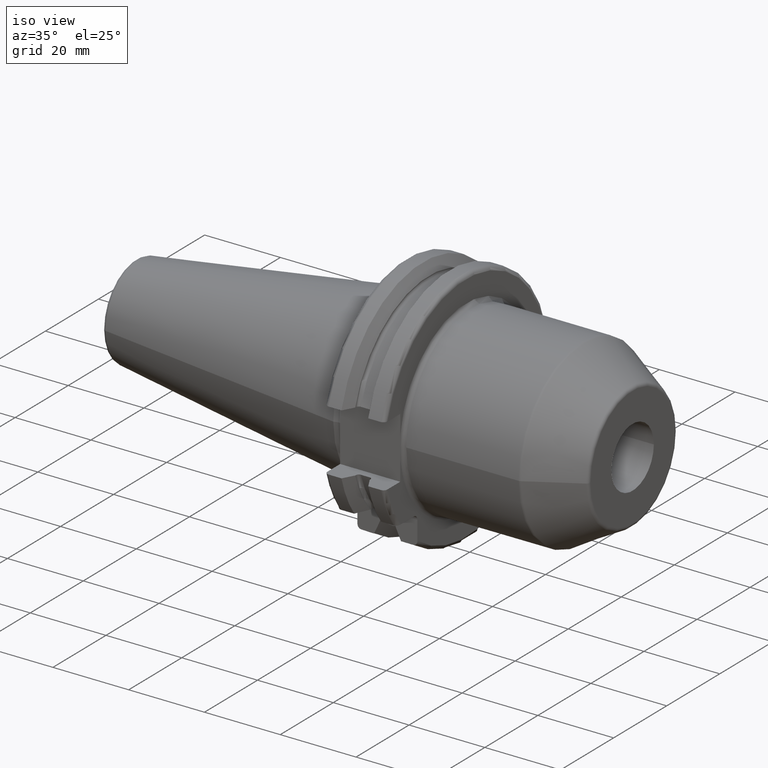
[diagram: clean part render]
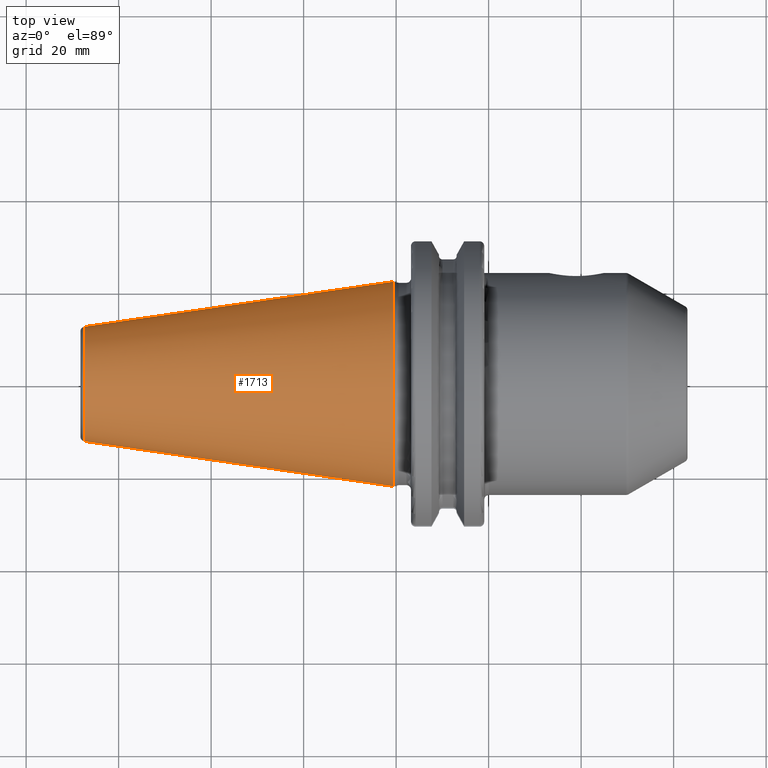
[diagram: tour spotlight — one face highlighted and labeled with its STEP entity id]
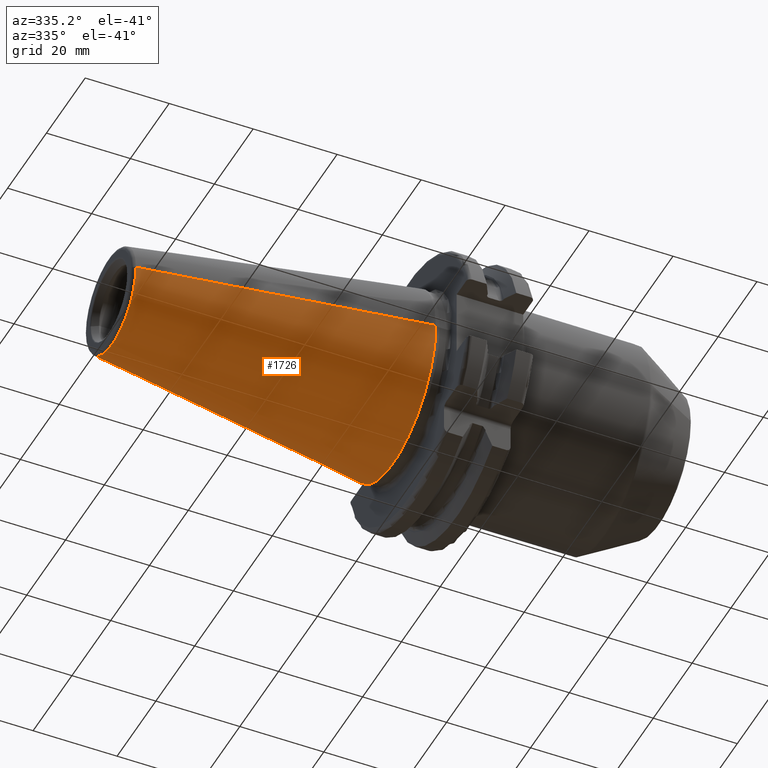
[diagram: tour spotlight — one face highlighted and labeled with its STEP entity id]
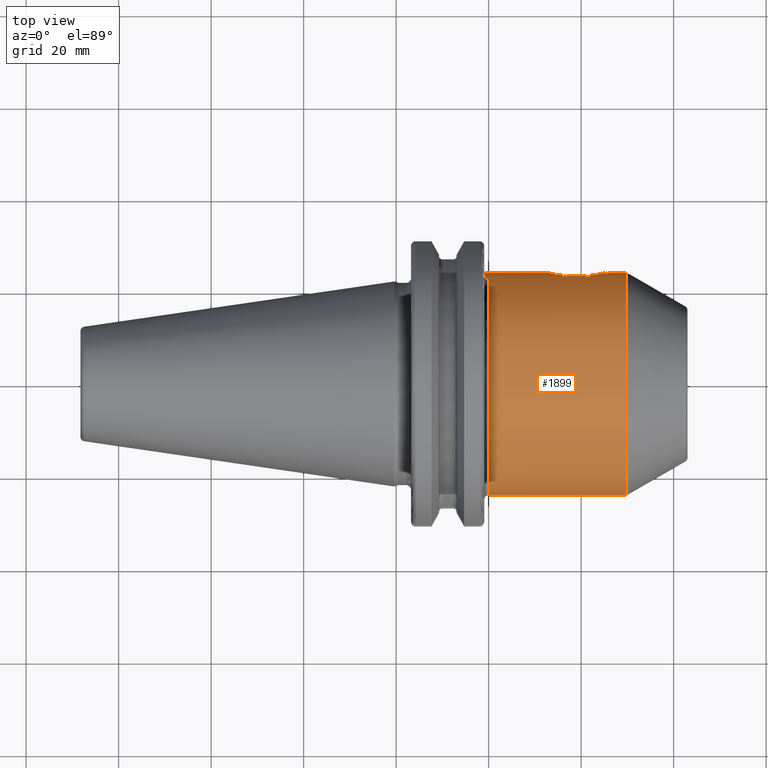
[diagram: tour spotlight — one face highlighted and labeled with its STEP entity id]
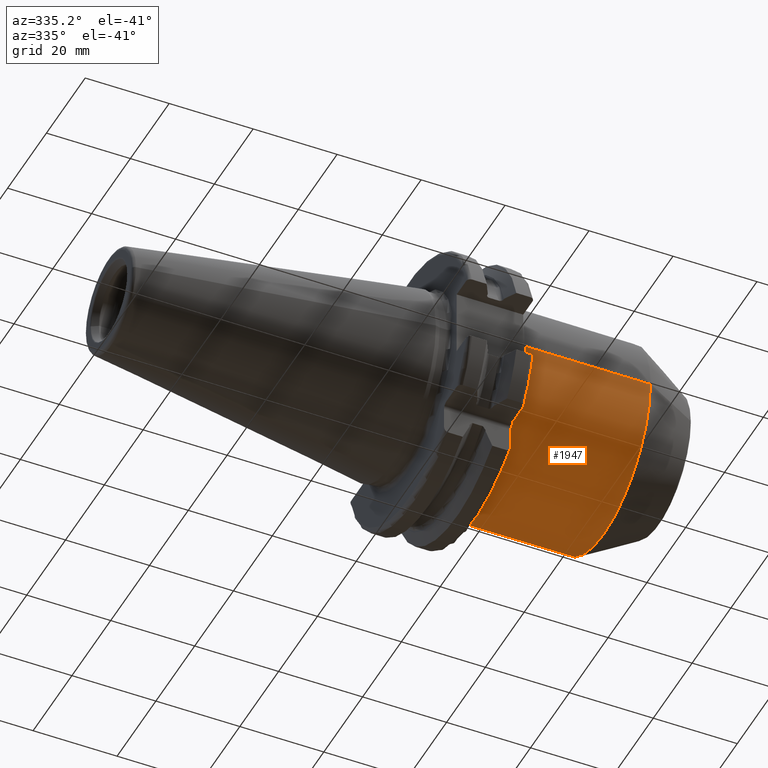
[diagram: tour spotlight — one face highlighted and labeled with its STEP entity id]
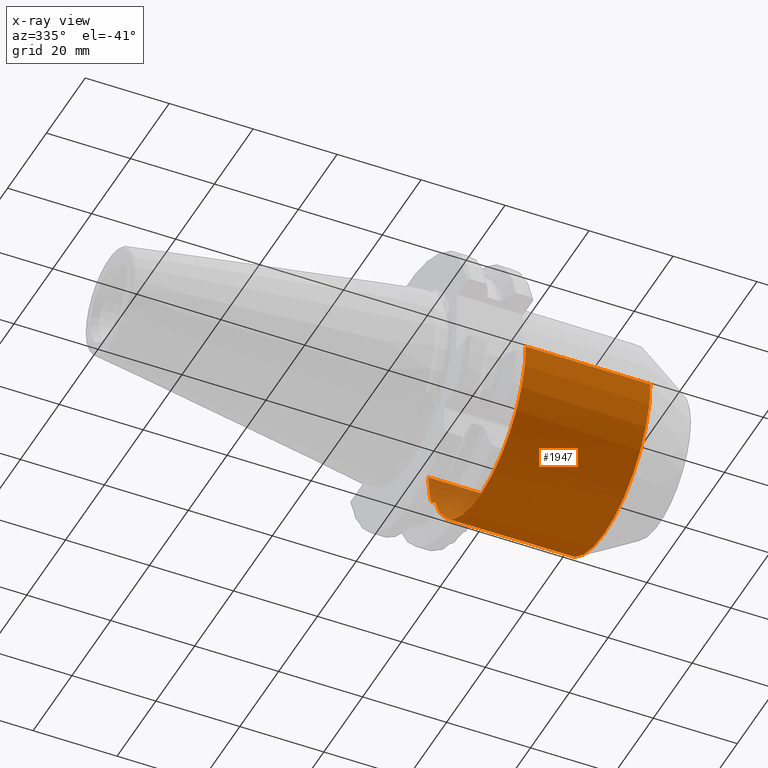
[diagram: x-ray of the same camera — body ghosted, this tour face saturated]
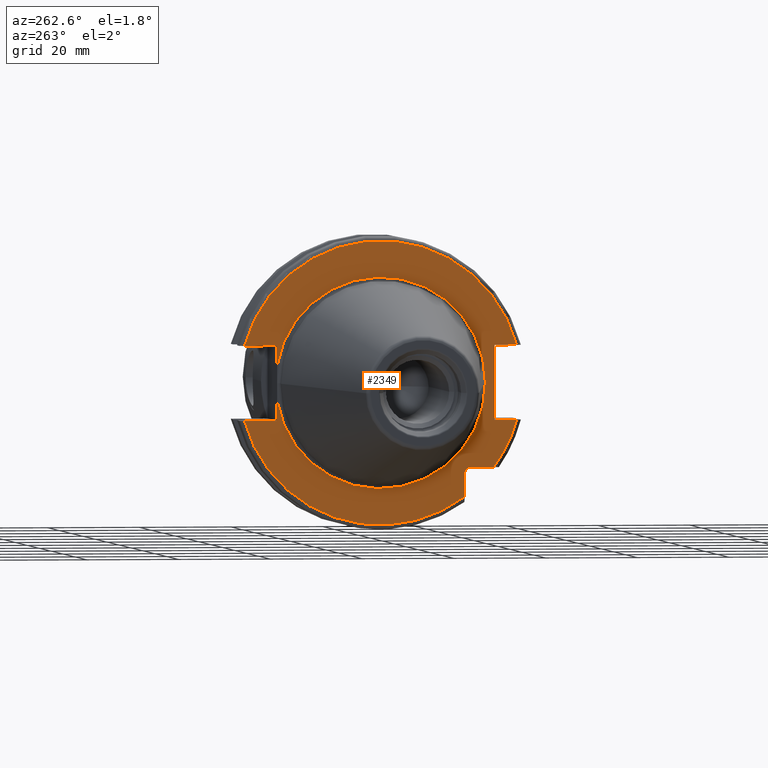
[diagram: tour spotlight — one face highlighted and labeled with its STEP entity id]
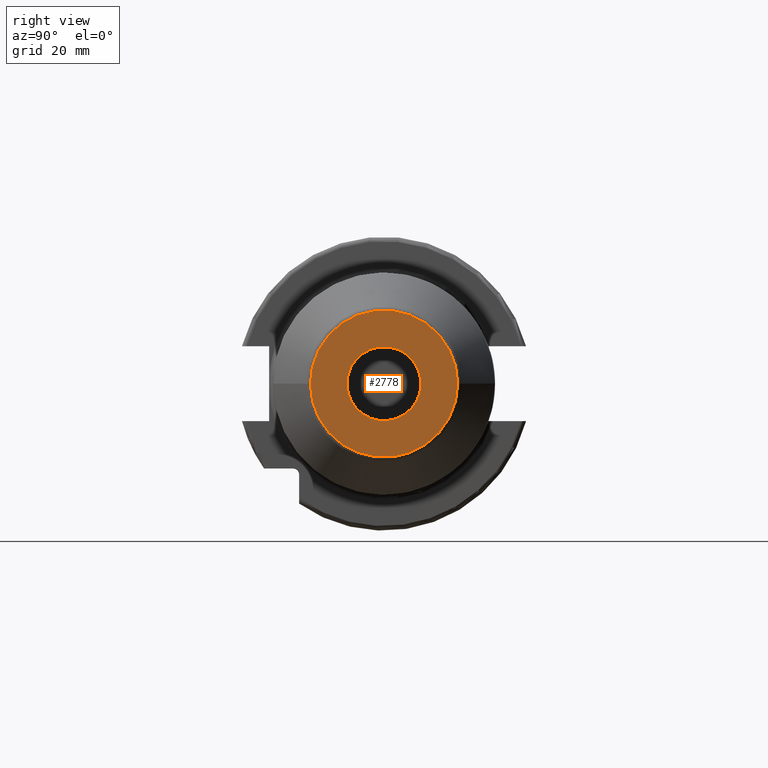
[diagram: tour spotlight — one face highlighted and labeled with its STEP entity id]
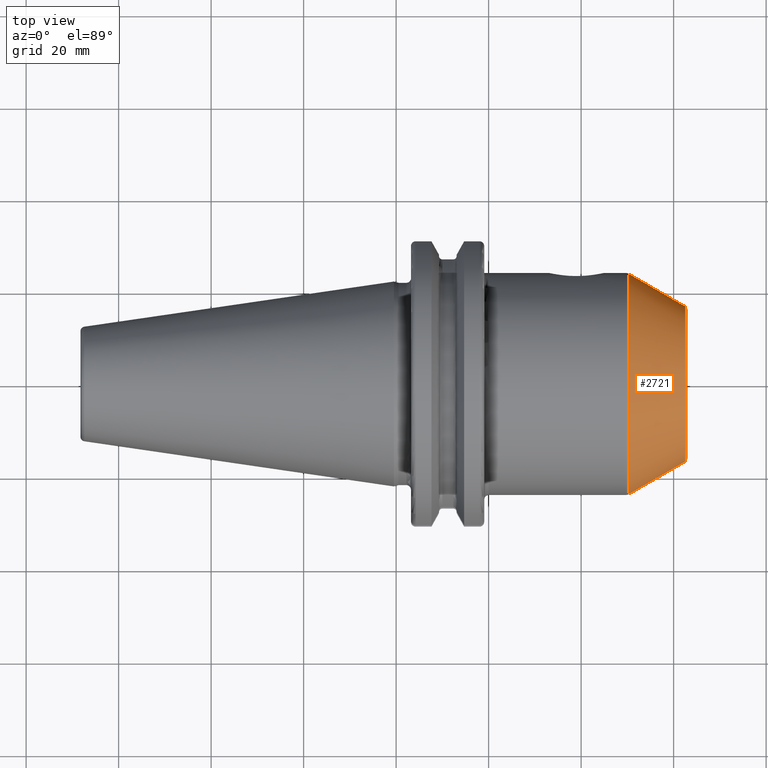
[diagram: tour spotlight — one face highlighted and labeled with its STEP entity id]
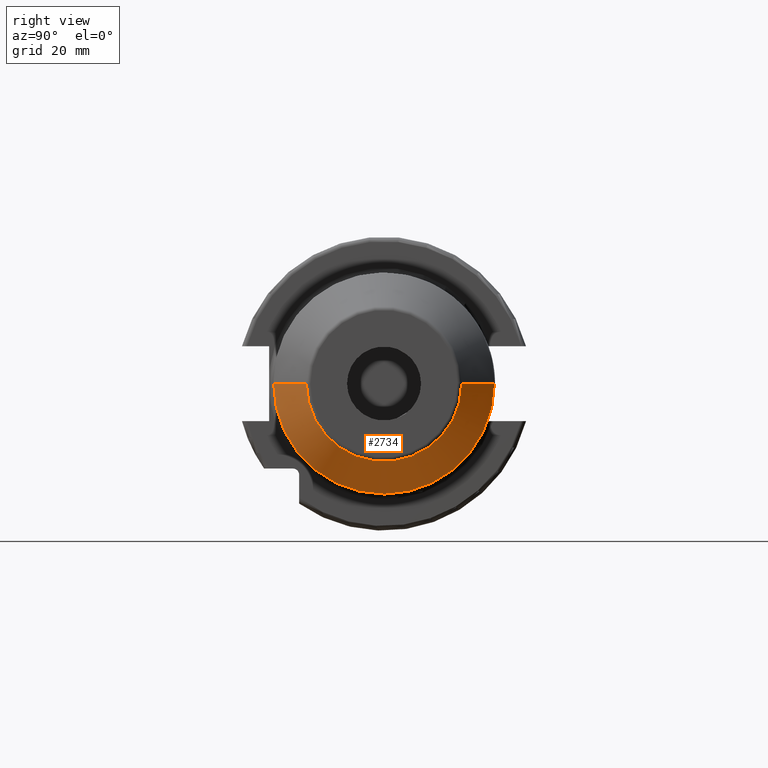
[diagram: tour spotlight — one face highlighted and labeled with its STEP entity id]
A machine part: a face-by-face anatomy tour. The part has 100 B-rep faces; the first image is the clean iso view, then the 8 largest visible faces are spotlighted one at a time (largest first), each with its STEP entity span.

Face 1 — top view, entity #1713. In plain terms, the highlighted conical surface has half-angle 8.298 deg.
Definition (entity closure, byte-faithful):
#37=CARTESIAN_POINT('',(-6.743710273571E1,0.E0,0.E0));
#38=DIRECTION('',(1.E0,0.E0,0.E0));
#39=DIRECTION('',(0.E0,1.E0,0.E0));
#40=AXIS2_PLACEMENT_3D('',#37,#38,#39);
#42=CARTESIAN_POINT('',(-4.896823332305E-1,0.E0,0.E0));
#43=DIRECTION('',(1.E0,0.E0,0.E0));
#44=DIRECTION('',(0.E0,1.E0,0.E0));
#45=AXIS2_PLACEMENT_3D('',#42,#43,#44);
#47=DIRECTION('',(-9.895312636440E-1,-1.443186691705E-1,0.E0));
#48=VECTOR('',#47,6.765568998391E1);
#49=CARTESIAN_POINT('',(-4.896823332305E-1,2.215358204157E1,0.E0));
#50=LINE('',#49,#48);
#51=DIRECTION('',(-9.895312636440E-1,1.443186691705E-1,0.E0));
#52=VECTOR('',#51,6.765568998391E1);
#53=CARTESIAN_POINT('',(-4.896823332305E-1,-2.215358204157E1,0.E0));
#54=LINE('',#53,#52);
#1379=CARTESIAN_POINT('',(-6.743710273571E1,1.238960290128E1,0.E0));
#1381=VERTEX_POINT('',#1379);
#1383=CARTESIAN_POINT('',(-6.743710273571E1,-1.238960290128E1,0.E0));
#1385=VERTEX_POINT('',#1383);
#1447=CARTESIAN_POINT('',(-4.896823332305E-1,2.215358204157E1,0.E0));
#1448=VERTEX_POINT('',#1447);
#1449=CARTESIAN_POINT('',(-4.896823332305E-1,-2.215358204157E1,0.E0));
#1450=VERTEX_POINT('',#1449);
#1699=CARTESIAN_POINT('',(-3.396339253447E1,0.E0,0.E0));
#1700=DIRECTION('',(1.E0,0.E0,0.E0));
#1701=DIRECTION('',(0.E0,-1.E0,0.E0));
#1702=AXIS2_PLACEMENT_3D('',#1699,#1700,#1701);
#1703=CONICAL_SURFACE('',#1702,1.727159247143E1,8.297826828206E0);
#1705=ORIENTED_EDGE('',*,*,#1704,.F.);
#1707=ORIENTED_EDGE('',*,*,#1706,.T.);
#1709=ORIENTED_EDGE('',*,*,#1708,.T.);
#1710=ORIENTED_EDGE('',*,*,#1692,.F.);
#1711=EDGE_LOOP('',(#1705,#1707,#1709,#1710));
#1712=FACE_OUTER_BOUND('',#1711,.F.);
#1713=ADVANCED_FACE('',(#1712),#1703,.T.);
#41=CIRCLE('',#40,1.238960290128E1);
#46=CIRCLE('',#45,2.215358204157E1);
#1692=EDGE_CURVE('',#1381,#1385,#41,.T.);
#1704=EDGE_CURVE('',#1448,#1381,#50,.T.);
#1706=EDGE_CURVE('',#1448,#1450,#46,.T.);
#1708=EDGE_CURVE('',#1450,#1385,#54,.T.);

Face 2 — auxiliary view, entity #1726. In plain terms, the highlighted conical surface has half-angle 8.298 deg.
Definition (entity closure, byte-faithful):
#32=CARTESIAN_POINT('',(-6.743710273571E1,0.E0,0.E0));
#33=DIRECTION('',(-1.E0,0.E0,0.E0));
#34=DIRECTION('',(0.E0,1.E0,0.E0));
#35=AXIS2_PLACEMENT_3D('',#32,#33,#34);
#47=DIRECTION('',(-9.895312636440E-1,-1.443186691705E-1,0.E0));
#48=VECTOR('',#47,6.765568998391E1);
#49=CARTESIAN_POINT('',(-4.896823332305E-1,2.215358204157E1,0.E0));
#50=LINE('',#49,#48);
#51=DIRECTION('',(-9.895312636440E-1,1.443186691705E-1,0.E0));
#52=VECTOR('',#51,6.765568998391E1);
#53=CARTESIAN_POINT('',(-4.896823332305E-1,-2.215358204157E1,0.E0));
#54=LINE('',#53,#52);
#55=CARTESIAN_POINT('',(-4.896823332305E-1,0.E0,0.E0));
#56=DIRECTION('',(-1.E0,0.E0,0.E0));
#57=DIRECTION('',(0.E0,1.E0,0.E0));
#58=AXIS2_PLACEMENT_3D('',#55,#56,#57);
#1379=CARTESIAN_POINT('',(-6.743710273571E1,1.238960290128E1,0.E0));
#1381=VERTEX_POINT('',#1379);
#1383=CARTESIAN_POINT('',(-6.743710273571E1,-1.238960290128E1,0.E0));
#1385=VERTEX_POINT('',#1383);
#1447=CARTESIAN_POINT('',(-4.896823332305E-1,2.215358204157E1,0.E0));
#1448=VERTEX_POINT('',#1447);
#1449=CARTESIAN_POINT('',(-4.896823332305E-1,-2.215358204157E1,0.E0));
#1450=VERTEX_POINT('',#1449);
#1714=CARTESIAN_POINT('',(-3.396339253447E1,0.E0,0.E0));
#1715=DIRECTION('',(1.E0,0.E0,0.E0));
#1716=DIRECTION('',(0.E0,-1.E0,0.E0));
#1717=AXIS2_PLACEMENT_3D('',#1714,#1715,#1716);
#1718=CONICAL_SURFACE('',#1717,1.727159247143E1,8.297826828206E0);
#1719=ORIENTED_EDGE('',*,*,#1704,.T.);
#1720=ORIENTED_EDGE('',*,*,#1681,.T.);
#1721=ORIENTED_EDGE('',*,*,#1708,.F.);
#1723=ORIENTED_EDGE('',*,*,#1722,.F.);
#1724=EDGE_LOOP('',(#1719,#1720,#1721,#1723));
#1725=FACE_OUTER_BOUND('',#1724,.F.);
#1726=ADVANCED_FACE('',(#1725),#1718,.T.);
#36=CIRCLE('',#35,1.238960290128E1);
#59=CIRCLE('',#58,2.215358204157E1);
#1681=EDGE_CURVE('',#1381,#1385,#36,.T.);
#1704=EDGE_CURVE('',#1448,#1381,#50,.T.);
#1708=EDGE_CURVE('',#1450,#1385,#54,.T.);
#1722=EDGE_CURVE('',#1448,#1450,#59,.T.);

Face 3 — top view, entity #1899. In plain terms, the highlighted cylindrical surface (partial cylindrical patch) has radius 24 mm, axis along (1, 0, 0).
Definition (entity closure, byte-faithful):
#135=CARTESIAN_POINT('',(1.905E1,0.E0,0.E0));
#136=DIRECTION('',(1.E0,0.E0,0.E0));
#137=DIRECTION('',(0.E0,1.E0,0.E0));
#138=AXIS2_PLACEMENT_3D('',#135,#136,#137);
#144=CARTESIAN_POINT('',(4.5E1,2.4E1,0.E0));
#145=CARTESIAN_POINT('',(4.5E1,2.4E1,3.668511090384E-1));
#146=CARTESIAN_POINT('',(4.493430291122E1,2.398343549512E1,1.090744288177E0));
#147=CARTESIAN_POINT('',(4.463170178380E1,2.390958246924E1,2.167808742937E0));
#148=CARTESIAN_POINT('',(4.413762659424E1,2.379676587072E1,3.165700197363E0));
#149=CARTESIAN_POINT('',(4.345994956941E1,2.365818524583E1,4.065373364471E0));
#150=CARTESIAN_POINT('',(4.263360409742E1,2.351466126429E1,4.818489201602E0));
#151=CARTESIAN_POINT('',(4.167271369838E1,2.338406388581E1,5.410237810502E0));
#152=CARTESIAN_POINT('',(4.064188429797E1,2.328768841151E1,5.806267129186E0));
#153=CARTESIAN_POINT('',(3.954710915606E1,2.323568156105E1,6.008705901759E0));
#154=CARTESIAN_POINT('',(3.845376052039E1,2.323565717152E1,6.008801998323E0));
#155=CARTESIAN_POINT('',(3.735879989026E1,2.328764316624E1,5.806439499221E0));
#156=CARTESIAN_POINT('',(3.632824707715E1,2.338394951438E1,5.410742200349E0));
#157=CARTESIAN_POINT('',(3.536671825619E1,2.351461233329E1,4.818698613390E0));
#158=CARTESIAN_POINT('',(3.454108651352E1,2.365799074726E1,4.066507728899E0));
#159=CARTESIAN_POINT('',(3.386254694974E1,2.379672294068E1,3.166045267207E0));
#160=CARTESIAN_POINT('',(3.336859926991E1,2.390951268291E1,2.168587725770E0));
#161=CARTESIAN_POINT('',(3.306565124648E1,2.398344554754E1,1.090744375021E0));
#162=CARTESIAN_POINT('',(3.3E1,2.4E1,3.668392981218E-1));
#163=CARTESIAN_POINT('',(3.3E1,2.4E1,0.E0));
#165=CARTESIAN_POINT('',(4.973205080757E1,0.E0,0.E0));
#166=DIRECTION('',(-1.E0,0.E0,0.E0));
#167=DIRECTION('',(0.E0,-1.E0,0.E0));
#168=AXIS2_PLACEMENT_3D('',#165,#166,#167);
#170=CARTESIAN_POINT('',(2.005E1,0.E0,0.E0));
#171=DIRECTION('',(1.E0,0.E0,0.E0));
#172=DIRECTION('',(0.E0,9.413255281782E-1,3.375E-1));
#173=AXIS2_PLACEMENT_3D('',#170,#171,#172);
#175=DIRECTION('',(-1.E0,0.E0,0.E0));
#176=VECTOR('',#175,1.E0);
#177=CARTESIAN_POINT('',(2.005E1,2.259181267628E1,8.1E0));
#178=LINE('',#177,#176);
#208=DIRECTION('',(-1.E0,0.E0,0.E0));
#209=VECTOR('',#208,1.395E1);
#210=CARTESIAN_POINT('',(3.3E1,2.4E1,0.E0));
#211=LINE('',#210,#209);
#221=DIRECTION('',(-9.999999999826E-1,6.445419744377E-11,-5.894382515811E-6));
#222=VECTOR('',#221,2.968205080808E1);
#223=CARTESIAN_POINT('',(4.973205080757E1,-2.4E1,6.535186015104E-12));
#224=LINE('',#223,#222);
#230=DIRECTION('',(-1.E0,0.E0,1.382637482908E-12));
#231=VECTOR('',#230,4.732050807569E0);
#232=CARTESIAN_POINT('',(4.973205080757E1,2.4E1,-6.541241241411E-12));
#233=LINE('',#232,#231);
#1604=CARTESIAN_POINT('',(2.005E1,-2.4E1,0.E0));
#1606=VERTEX_POINT('',#1604);
#1612=CARTESIAN_POINT('',(2.005E1,2.259181267628E1,8.1E0));
#1613=VERTEX_POINT('',#1612);
#1614=CARTESIAN_POINT('',(4.973205080757E1,2.4E1,0.E0));
#1615=CARTESIAN_POINT('',(4.973205080757E1,-2.4E1,0.E0));
#1616=VERTEX_POINT('',#1614);
#1617=VERTEX_POINT('',#1615);
#1639=VERTEX_POINT('',#144);
#1640=VERTEX_POINT('',#163);
#1647=CARTESIAN_POINT('',(1.905E1,2.259181267628E1,8.1E0));
#1648=VERTEX_POINT('',#1647);
#1651=CARTESIAN_POINT('',(1.905E1,2.4E1,0.E0));
#1652=VERTEX_POINT('',#1651);
#1878=CARTESIAN_POINT('',(1.68525E1,0.E0,0.E0));
#1879=DIRECTION('',(1.E0,0.E0,0.E0));
#1880=DIRECTION('',(0.E0,-1.E0,0.E0));
#1881=AXIS2_PLACEMENT_3D('',#1878,#1879,#1880);
#1882=CYLINDRICAL_SURFACE('',#1881,2.4E1);
#1884=ORIENTED_EDGE('',*,*,#1883,.F.);
#1886=ORIENTED_EDGE('',*,*,#1885,.F.);
#1888=ORIENTED_EDGE('',*,*,#1887,.F.);
#1890=ORIENTED_EDGE('',*,*,#1889,.T.);
#1892=ORIENTED_EDGE('',*,*,#1891,.F.);
#1893=ORIENTED_EDGE('',*,*,#1844,.T.);
#1894=ORIENTED_EDGE('',*,*,#1833,.F.);
#1896=ORIENTED_EDGE('',*,*,#1895,.F.);
#1897=EDGE_LOOP('',(#1884,#1886,#1888,#1890,#1892,#1893,#1894,#1896));
#1898=FACE_OUTER_BOUND('',#1897,.F.);
#1899=ADVANCED_FACE('',(#1898),#1882,.T.);
#139=CIRCLE('',#138,2.4E1);
#164=B_SPLINE_CURVE_WITH_KNOTS('',3,(#144,#145,#146,#147,#148,#149,#150,#151,
#152,#153,#154,#155,#156,#157,#158,#159,#160,#161,#162,#163),.UNSPECIFIED.,.F.,
.F.,(4,1,1,1,1,1,1,1,1,1,1,1,1,1,1,1,1,4),(0.E0,5.882352941176E-2,
1.176470588235E-1,1.764705882353E-1,2.352941176471E-1,2.941176470588E-1,
3.529411764706E-1,4.117647058824E-1,4.705882352941E-1,5.294117647059E-1,
5.882352941176E-1,6.470588235294E-1,7.058823529412E-1,7.647058823529E-1,
8.235294117647E-1,8.823529411765E-1,9.411764705882E-1,1.E0),.UNSPECIFIED.);
#169=CIRCLE('',#168,2.4E1);
#174=CIRCLE('',#173,2.4E1);
#1833=EDGE_CURVE('',#1652,#1648,#139,.T.);
#1844=EDGE_CURVE('',#1613,#1648,#178,.T.);
#1883=EDGE_CURVE('',#1639,#1640,#164,.T.);
#1885=EDGE_CURVE('',#1616,#1639,#233,.T.);
#1887=EDGE_CURVE('',#1617,#1616,#169,.T.);
#1889=EDGE_CURVE('',#1617,#1606,#224,.T.);
#1891=EDGE_CURVE('',#1613,#1606,#174,.T.);
#1895=EDGE_CURVE('',#1640,#1652,#211,.T.);

Face 4 — auxiliary view, entity #1947. An x-ray twin of the same camera follows (body ghosted, this face saturated) — the face is partly hidden behind the body. In plain terms, the highlighted cylindrical surface (partial cylindrical patch) has radius 24 mm, axis along (1, 0, 0).
Definition (entity closure, byte-faithful):
#130=CARTESIAN_POINT('',(1.905E1,0.E0,0.E0));
#131=DIRECTION('',(-1.E0,0.E0,0.E0));
#132=DIRECTION('',(0.E0,1.E0,0.E0));
#133=AXIS2_PLACEMENT_3D('',#130,#131,#132);
#144=CARTESIAN_POINT('',(4.5E1,2.4E1,0.E0));
#163=CARTESIAN_POINT('',(3.3E1,2.4E1,0.E0));
#187=CARTESIAN_POINT('',(3.3E1,2.4E1,0.E0));
#188=CARTESIAN_POINT('',(3.3E1,2.4E1,-3.668443131016E-1));
#189=CARTESIAN_POINT('',(3.306570085044E1,2.398343476341E1,-1.090724991861E0));
#190=CARTESIAN_POINT('',(3.336824601454E1,2.390959463695E1,-2.167675025507E0));
#191=CARTESIAN_POINT('',(3.386234773983E1,2.379677198056E1,-3.165654735212E0));
#192=CARTESIAN_POINT('',(3.453992993163E1,2.365820774568E1,-4.065242386136E0));
#193=CARTESIAN_POINT('',(3.536637516905E1,2.351466421708E1,-4.818478620202E0));
#194=CARTESIAN_POINT('',(3.632719623603E1,2.338407464400E1,-5.410189917156E0));
#195=CARTESIAN_POINT('',(3.735806342684E1,2.328769171992E1,-5.806254880764E0));
#196=CARTESIAN_POINT('',(3.845282210941E1,2.323568333177E1,-6.008698850153E0));
#197=CARTESIAN_POINT('',(3.954619018785E1,2.323565564652E1,-6.008807960881E0));
#198=CARTESIAN_POINT('',(4.064115769399E1,2.328764024689E1,-5.806450899468E0));
#199=CARTESIAN_POINT('',(4.167171056778E1,2.338394442747E1,-5.410764421792E0));
#200=CARTESIAN_POINT('',(4.263326260087E1,2.351460932986E1,-4.818712580642E0));
#201=CARTESIAN_POINT('',(4.345888084792E1,2.365798457746E1,-4.066543837758E0));
#202=CARTESIAN_POINT('',(4.413744488247E1,2.379672103259E1,-3.166060062701E0));
#203=CARTESIAN_POINT('',(4.463138920853E1,2.390950999440E1,-2.168616995784E0));
#204=CARTESIAN_POINT('',(4.493434828630E1,2.398344539058E1,-1.090754674083E0));
#205=CARTESIAN_POINT('',(4.5E1,2.4E1,-3.668432584909E-1));
#206=CARTESIAN_POINT('',(4.5E1,2.4E1,0.E0));
#208=DIRECTION('',(-1.E0,0.E0,0.E0));
#209=VECTOR('',#208,1.395E1);
#210=CARTESIAN_POINT('',(3.3E1,2.4E1,0.E0));
#211=LINE('',#210,#209);
#212=DIRECTION('',(-1.E0,0.E0,0.E0));
#213=VECTOR('',#212,1.E0);
#214=CARTESIAN_POINT('',(2.005E1,2.259181267628E1,-8.1E0));
#215=LINE('',#214,#213);
#216=CARTESIAN_POINT('',(2.005E1,0.E0,0.E0));
#217=DIRECTION('',(1.E0,0.E0,0.E0));
#218=DIRECTION('',(0.E0,-1.E0,0.E0));
#219=AXIS2_PLACEMENT_3D('',#216,#217,#218);
#221=DIRECTION('',(-9.999999999826E-1,6.445419744377E-11,-5.894382515811E-6));
#222=VECTOR('',#221,2.968205080808E1);
#223=CARTESIAN_POINT('',(4.973205080757E1,-2.4E1,6.535186015104E-12));
#224=LINE('',#223,#222);
#225=CARTESIAN_POINT('',(4.973205080757E1,0.E0,0.E0));
#226=DIRECTION('',(-1.E0,0.E0,0.E0));
#227=DIRECTION('',(0.E0,1.E0,0.E0));
#228=AXIS2_PLACEMENT_3D('',#225,#226,#227);
#230=DIRECTION('',(-1.E0,0.E0,1.382637482908E-12));
#231=VECTOR('',#230,4.732050807569E0);
#232=CARTESIAN_POINT('',(4.973205080757E1,2.4E1,-6.541241241411E-12));
#233=LINE('',#232,#231);
#1604=CARTESIAN_POINT('',(2.005E1,-2.4E1,0.E0));
#1605=CARTESIAN_POINT('',(2.005E1,2.259181267628E1,-8.1E0));
#1606=VERTEX_POINT('',#1604);
#1607=VERTEX_POINT('',#1605);
#1614=CARTESIAN_POINT('',(4.973205080757E1,2.4E1,0.E0));
#1615=CARTESIAN_POINT('',(4.973205080757E1,-2.4E1,0.E0));
#1616=VERTEX_POINT('',#1614);
#1617=VERTEX_POINT('',#1615);
#1639=VERTEX_POINT('',#144);
#1640=VERTEX_POINT('',#163);
#1649=CARTESIAN_POINT('',(1.905E1,2.259181267628E1,-8.1E0));
#1650=VERTEX_POINT('',#1649);
#1651=CARTESIAN_POINT('',(1.905E1,2.4E1,0.E0));
#1652=VERTEX_POINT('',#1651);
#1929=CARTESIAN_POINT('',(1.68525E1,0.E0,0.E0));
#1930=DIRECTION('',(1.E0,0.E0,0.E0));
#1931=DIRECTION('',(0.E0,-1.E0,0.E0));
#1932=AXIS2_PLACEMENT_3D('',#1929,#1930,#1931);
#1933=CYLINDRICAL_SURFACE('',#1932,2.4E1);
#1934=ORIENTED_EDGE('',*,*,#1920,.F.);
#1935=ORIENTED_EDGE('',*,*,#1895,.T.);
#1936=ORIENTED_EDGE('',*,*,#1831,.T.);
#1938=ORIENTED_EDGE('',*,*,#1937,.F.);
#1940=ORIENTED_EDGE('',*,*,#1939,.F.);
#1941=ORIENTED_EDGE('',*,*,#1889,.F.);
#1943=ORIENTED_EDGE('',*,*,#1942,.F.);
#1944=ORIENTED_EDGE('',*,*,#1885,.T.);
#1945=EDGE_LOOP('',(#1934,#1935,#1936,#1938,#1940,#1941,#1943,#1944));
#1946=FACE_OUTER_BOUND('',#1945,.F.);
#1947=ADVANCED_FACE('',(#1946),#1933,.T.);
#134=CIRCLE('',#133,2.4E1);
#207=B_SPLINE_CURVE_WITH_KNOTS('',3,(#187,#188,#189,#190,#191,#192,#193,#194,
#195,#196,#197,#198,#199,#200,#201,#202,#203,#204,#205,#206),.UNSPECIFIED.,.F.,
.F.,(4,1,1,1,1,1,1,1,1,1,1,1,1,1,1,1,1,4),(0.E0,5.882352941176E-2,
1.176470588235E-1,1.764705882353E-1,2.352941176471E-1,2.941176470588E-1,
3.529411764706E-1,4.117647058824E-1,4.705882352941E-1,5.294117647059E-1,
5.882352941176E-1,6.470588235294E-1,7.058823529412E-1,7.647058823529E-1,
8.235294117647E-1,8.823529411765E-1,9.411764705882E-1,1.E0),.UNSPECIFIED.);
#220=CIRCLE('',#219,2.4E1);
#229=CIRCLE('',#228,2.4E1);
#1831=EDGE_CURVE('',#1652,#1650,#134,.T.);
#1885=EDGE_CURVE('',#1616,#1639,#233,.T.);
#1889=EDGE_CURVE('',#1617,#1606,#224,.T.);
#1895=EDGE_CURVE('',#1640,#1652,#211,.T.);
#1920=EDGE_CURVE('',#1640,#1639,#207,.T.);
#1937=EDGE_CURVE('',#1607,#1650,#215,.T.);
#1939=EDGE_CURVE('',#1606,#1607,#220,.T.);
#1942=EDGE_CURVE('',#1616,#1617,#229,.T.);

Face 5 — auxiliary view, entity #2349. In plain terms, the highlighted planar face has unit normal (1, 0, 0).
Definition (entity closure, byte-faithful):
#117=CARTESIAN_POINT('',(3.2E0,0.E0,0.E0));
#118=DIRECTION('',(-1.E0,0.E0,0.E0));
#119=DIRECTION('',(0.E0,9.857923497268E-1,-1.679685780739E-1));
#120=AXIS2_PLACEMENT_3D('',#117,#118,#119);
#555=DIRECTION('',(0.E0,-1.E0,0.E0));
#556=VECTOR('',#555,4.990259339464E0);
#557=CARTESIAN_POINT('',(3.2E0,-1.97E1,-1.835E1));
#558=LINE('',#557,#556);
#559=DIRECTION('',(0.E0,0.E0,1.E0));
#560=VECTOR('',#559,4.990259339464E0);
#561=CARTESIAN_POINT('',(3.2E0,-1.835E1,-2.469025933946E1));
#562=LINE('',#561,#560);
#563=CARTESIAN_POINT('',(3.2E0,0.E0,0.E0));
#564=DIRECTION('',(-1.E0,0.E0,0.E0));
#565=DIRECTION('',(0.E0,9.647119303464E-1,-2.633075985372E-1));
#566=AXIS2_PLACEMENT_3D('',#563,#564,#565);
#568=DIRECTION('',(0.E0,-1.E0,0.E0));
#569=VECTOR('',#568,7.126950757280E0);
#570=CARTESIAN_POINT('',(3.2E0,2.967695075728E1,-8.1E0));
#571=LINE('',#570,#569);
#572=DIRECTION('',(0.E0,0.E0,-1.E0));
#573=VECTOR('',#572,4.257718776560E0);
#574=CARTESIAN_POINT('',(3.2E0,2.255E1,-3.842281223440E0));
#575=LINE('',#574,#573);
#576=DIRECTION('',(0.E0,0.E0,-1.E0));
#577=VECTOR('',#576,4.257718776560E0);
#578=CARTESIAN_POINT('',(3.2E0,2.255E1,8.1E0));
#579=LINE('',#578,#577);
#580=DIRECTION('',(0.E0,-1.E0,0.E0));
#581=VECTOR('',#580,7.126950757280E0);
#582=CARTESIAN_POINT('',(3.2E0,2.967695075728E1,8.1E0));
#583=LINE('',#582,#581);
#584=CARTESIAN_POINT('',(3.2E0,0.E0,0.E0));
#585=DIRECTION('',(1.E0,0.E0,0.E0));
#586=DIRECTION('',(0.E0,9.647119303464E-1,2.633075985372E-1));
#587=AXIS2_PLACEMENT_3D('',#584,#585,#586);
#589=DIRECTION('',(0.E0,1.E0,0.E0));
#590=VECTOR('',#589,4.826950757280E0);
#591=CARTESIAN_POINT('',(3.2E0,-2.967695075728E1,8.1E0));
#592=LINE('',#591,#590);
#593=DIRECTION('',(0.E0,0.E0,1.E0));
#594=VECTOR('',#593,1.62E1);
#595=CARTESIAN_POINT('',(3.2E0,-2.485E1,-8.1E0));
#596=LINE('',#595,#594);
#597=DIRECTION('',(0.E0,1.E0,0.E0));
#598=VECTOR('',#597,4.826950757280E0);
#599=CARTESIAN_POINT('',(3.2E0,-2.967695075728E1,-8.1E0));
#600=LINE('',#599,#598);
#601=CARTESIAN_POINT('',(3.2E0,0.E0,0.E0));
#602=DIRECTION('',(-1.E0,0.E0,0.E0));
#603=DIRECTION('',(0.E0,-8.026089992512E-1,-5.965054855750E-1));
#604=AXIS2_PLACEMENT_3D('',#601,#602,#603);
#615=CARTESIAN_POINT('',(3.2E0,-1.97E1,-1.97E1));
#616=DIRECTION('',(1.E0,0.E0,0.E0));
#617=DIRECTION('',(0.E0,1.E0,0.E0));
#618=AXIS2_PLACEMENT_3D('',#615,#616,#617);
#1005=CARTESIAN_POINT('',(3.2E0,0.E0,0.E0));
#1006=DIRECTION('',(1.E0,0.E0,0.E0));
#1007=DIRECTION('',(0.E0,9.857923497268E-1,1.679685780739E-1));
#1008=AXIS2_PLACEMENT_3D('',#1005,#1006,#1007);
#1391=CARTESIAN_POINT('',(3.2E0,-2.2875E1,0.E0));
#1393=VERTEX_POINT('',#1391);
#1533=CARTESIAN_POINT('',(3.2E0,2.967695075728E1,8.1E0));
#1534=CARTESIAN_POINT('',(3.2E0,2.255E1,8.1E0));
#1535=VERTEX_POINT('',#1533);
#1536=VERTEX_POINT('',#1534);
#1537=CARTESIAN_POINT('',(3.2E0,2.255E1,3.842281223440E0));
#1538=VERTEX_POINT('',#1537);
#1539=CARTESIAN_POINT('',(3.2E0,2.255E1,-3.842281223440E0));
#1540=CARTESIAN_POINT('',(3.2E0,2.255E1,-8.1E0));
#1541=VERTEX_POINT('',#1539);
#1542=VERTEX_POINT('',#1540);
#1543=CARTESIAN_POINT('',(3.2E0,2.967695075728E1,-8.1E0));
#1544=VERTEX_POINT('',#1543);
#1545=CARTESIAN_POINT('',(3.2E0,-2.967695075728E1,-8.1E0));
#1546=CARTESIAN_POINT('',(3.2E0,-2.485E1,-8.1E0));
#1547=VERTEX_POINT('',#1545);
#1548=VERTEX_POINT('',#1546);
#1549=CARTESIAN_POINT('',(3.2E0,-2.485E1,8.1E0));
#1550=VERTEX_POINT('',#1549);
#1551=CARTESIAN_POINT('',(3.2E0,-2.967695075728E1,8.1E0));
#1552=VERTEX_POINT('',#1551);
#1578=CARTESIAN_POINT('',(3.2E0,-1.835E1,-2.469025933946E1));
#1579=VERTEX_POINT('',#1578);
#1586=CARTESIAN_POINT('',(3.2E0,-1.97E1,-1.835E1));
#1587=CARTESIAN_POINT('',(3.2E0,-2.469025933946E1,-1.835E1));
#1588=VERTEX_POINT('',#1586);
#1589=VERTEX_POINT('',#1587);
#1590=CARTESIAN_POINT('',(3.2E0,-1.835E1,-1.97E1));
#1591=VERTEX_POINT('',#1590);
#2320=CARTESIAN_POINT('',(3.2E0,0.E0,0.E0));
#2321=DIRECTION('',(1.E0,0.E0,0.E0));
#2322=DIRECTION('',(0.E0,-1.E0,0.E0));
#2323=AXIS2_PLACEMENT_3D('',#2320,#2321,#2322);
#2324=PLANE('',#2323);
#2326=ORIENTED_EDGE('',*,*,#2325,.F.);
#2328=ORIENTED_EDGE('',*,*,#2327,.F.);
#2330=ORIENTED_EDGE('',*,*,#2329,.F.);
#2332=ORIENTED_EDGE('',*,*,#2331,.F.);
#2333=ORIENTED_EDGE('',*,*,#1960,.T.);
#2334=ORIENTED_EDGE('',*,*,#1814,.F.);
#2335=ORIENTED_EDGE('',*,*,#1795,.T.);
#2337=ORIENTED_EDGE('',*,*,#2336,.F.);
#2338=ORIENTED_EDGE('',*,*,#1809,.F.);
#2339=ORIENTED_EDGE('',*,*,#1872,.F.);
#2341=ORIENTED_EDGE('',*,*,#2340,.T.);
#2342=ORIENTED_EDGE('',*,*,#2299,.T.);
#2343=ORIENTED_EDGE('',*,*,#2055,.F.);
#2344=ORIENTED_EDGE('',*,*,#2075,.F.);
#2346=ORIENTED_EDGE('',*,*,#2345,.F.);
#2347=EDGE_LOOP('',(#2326,#2328,#2330,#2332,#2333,#2334,#2335,#2337,#2338,#2339,
#2341,#2342,#2343,#2344,#2346));
#2348=FACE_OUTER_BOUND('',#2347,.F.);
#2349=ADVANCED_FACE('',(#2348),#2324,.F.);
#121=CIRCLE('',#120,2.2875E1);
#567=CIRCLE('',#566,3.07625E1);
#588=CIRCLE('',#587,3.07625E1);
#605=CIRCLE('',#604,3.07625E1);
#619=CIRCLE('',#618,1.35E0);
#1009=CIRCLE('',#1008,2.2875E1);
#1795=EDGE_CURVE('',#1541,#1393,#121,.T.);
#1809=EDGE_CURVE('',#1536,#1538,#579,.T.);
#1814=EDGE_CURVE('',#1541,#1542,#575,.T.);
#1872=EDGE_CURVE('',#1535,#1536,#583,.T.);
#1960=EDGE_CURVE('',#1544,#1542,#571,.T.);
#2055=EDGE_CURVE('',#1548,#1550,#596,.T.);
#2075=EDGE_CURVE('',#1547,#1548,#600,.T.);
#2299=EDGE_CURVE('',#1552,#1550,#592,.T.);
#2325=EDGE_CURVE('',#1588,#1589,#558,.T.);
#2327=EDGE_CURVE('',#1591,#1588,#619,.T.);
#2329=EDGE_CURVE('',#1579,#1591,#562,.T.);
#2331=EDGE_CURVE('',#1544,#1579,#567,.T.);
#2336=EDGE_CURVE('',#1538,#1393,#1009,.T.);
#2340=EDGE_CURVE('',#1535,#1552,#588,.T.);
#2345=EDGE_CURVE('',#1589,#1547,#605,.T.);

Face 6 — right view, entity #2778. In plain terms, the highlighted planar face has unit normal (1, 0, 0).
Definition (entity closure, byte-faithful):
#1085=CARTESIAN_POINT('',(6.3E1,0.E0,0.E0));
#1086=DIRECTION('',(1.E0,0.E0,0.E0));
#1087=DIRECTION('',(0.E0,1.E0,0.E0));
#1088=AXIS2_PLACEMENT_3D('',#1085,#1086,#1087);
#1090=CARTESIAN_POINT('',(6.3E1,0.E0,0.E0));
#1091=DIRECTION('',(1.E0,0.E0,0.E0));
#1092=DIRECTION('',(0.E0,-1.E0,0.E0));
#1093=AXIS2_PLACEMENT_3D('',#1090,#1091,#1092);
#1095=CARTESIAN_POINT('',(6.3E1,0.E0,0.E0));
#1096=DIRECTION('',(-1.E0,0.E0,0.E0));
#1097=DIRECTION('',(0.E0,1.E0,0.E0));
#1098=AXIS2_PLACEMENT_3D('',#1095,#1096,#1097);
#1100=CARTESIAN_POINT('',(6.3E1,0.E0,0.E0));
#1101=DIRECTION('',(-1.E0,0.E0,0.E0));
#1102=DIRECTION('',(0.E0,-1.E0,0.E0));
#1103=AXIS2_PLACEMENT_3D('',#1100,#1101,#1102);
#1596=CARTESIAN_POINT('',(6.3E1,8.E0,0.E0));
#1597=CARTESIAN_POINT('',(6.3E1,-8.E0,0.E0));
#1598=VERTEX_POINT('',#1596);
#1599=VERTEX_POINT('',#1597);
#1626=CARTESIAN_POINT('',(6.3E1,1.591709623135E1,-2.177739006117E-14));
#1627=CARTESIAN_POINT('',(6.3E1,-1.591709623135E1,0.E0));
#1628=VERTEX_POINT('',#1626);
#1629=VERTEX_POINT('',#1627);
#2763=CARTESIAN_POINT('',(6.3E1,0.E0,0.E0));
#2764=DIRECTION('',(1.E0,0.E0,0.E0));
#2765=DIRECTION('',(0.E0,-1.E0,0.E0));
#2766=AXIS2_PLACEMENT_3D('',#2763,#2764,#2765);
#2767=PLANE('',#2766);
#2768=ORIENTED_EDGE('',*,*,#2743,.T.);
#2769=ORIENTED_EDGE('',*,*,#2757,.T.);
#2770=EDGE_LOOP('',(#2768,#2769));
#2771=FACE_OUTER_BOUND('',#2770,.F.);
#2773=ORIENTED_EDGE('',*,*,#2772,.T.);
#2775=ORIENTED_EDGE('',*,*,#2774,.T.);
#2776=EDGE_LOOP('',(#2773,#2775));
#2777=FACE_BOUND('',#2776,.F.);
#2778=ADVANCED_FACE('',(#2771,#2777),#2767,.T.);
#1089=CIRCLE('',#1088,8.E0);
#1094=CIRCLE('',#1093,8.E0);
#1099=CIRCLE('',#1098,1.591709623135E1);
#1104=CIRCLE('',#1103,1.591709623135E1);
#2743=EDGE_CURVE('',#1628,#1629,#1099,.T.);
#2757=EDGE_CURVE('',#1629,#1628,#1104,.T.);
#2772=EDGE_CURVE('',#1598,#1599,#1089,.T.);
#2774=EDGE_CURVE('',#1599,#1598,#1094,.T.);

Face 7 — top view, entity #2721. In plain terms, the highlighted conical surface has half-angle 30 deg.
Definition (entity closure, byte-faithful):
#1047=CARTESIAN_POINT('',(5.023205080757E1,0.E0,0.E0));
#1048=DIRECTION('',(-1.E0,0.E0,0.E0));
#1049=DIRECTION('',(0.E0,-1.E0,0.E0));
#1050=AXIS2_PLACEMENT_3D('',#1047,#1048,#1049);
#1052=CARTESIAN_POINT('',(6.25E1,0.E0,0.E0));
#1053=DIRECTION('',(-1.E0,0.E0,0.E0));
#1054=DIRECTION('',(0.E0,-1.E0,0.E0));
#1055=AXIS2_PLACEMENT_3D('',#1052,#1053,#1054);
#1062=DIRECTION('',(-8.660254037844E-1,-5.E-1,2.480853569652E-13));
#1063=VECTOR('',#1062,1.416580753731E1);
#1064=CARTESIAN_POINT('',(6.25E1,-1.678312163513E1,8.056947175968E-13));
#1065=LINE('',#1064,#1063);
#1071=DIRECTION('',(-8.660254037844E-1,5.E-1,-2.482162658698E-13));
#1072=VECTOR('',#1071,1.416580753731E1);
#1073=CARTESIAN_POINT('',(6.25E1,1.678312163513E1,-8.062085525015E-13));
#1074=LINE('',#1073,#1072);
#1618=CARTESIAN_POINT('',(5.023205080757E1,2.386602540378E1,0.E0));
#1619=CARTESIAN_POINT('',(5.023205080757E1,-2.386602540378E1,0.E0));
#1620=VERTEX_POINT('',#1618);
#1621=VERTEX_POINT('',#1619);
#1622=CARTESIAN_POINT('',(6.25E1,1.678312163513E1,0.E0));
#1623=CARTESIAN_POINT('',(6.25E1,-1.678312163513E1,0.E0));
#1624=VERTEX_POINT('',#1622);
#1625=VERTEX_POINT('',#1623);
#2707=CARTESIAN_POINT('',(5.636602540378E1,0.E0,0.E0));
#2708=DIRECTION('',(-1.E0,0.E0,0.E0));
#2709=DIRECTION('',(0.E0,1.E0,0.E0));
#2710=AXIS2_PLACEMENT_3D('',#2707,#2708,#2709);
#2711=CONICAL_SURFACE('',#2710,2.032457351946E1,3.E1);
#2712=ORIENTED_EDGE('',*,*,#2701,.T.);
#2714=ORIENTED_EDGE('',*,*,#2713,.F.);
#2716=ORIENTED_EDGE('',*,*,#2715,.F.);
#2718=ORIENTED_EDGE('',*,*,#2717,.T.);
#2719=EDGE_LOOP('',(#2712,#2714,#2716,#2718));
#2720=FACE_OUTER_BOUND('',#2719,.F.);
#2721=ADVANCED_FACE('',(#2720),#2711,.T.);
#1051=CIRCLE('',#1050,2.386602540378E1);
#1056=CIRCLE('',#1055,1.678312163513E1);
#2701=EDGE_CURVE('',#1621,#1620,#1051,.T.);
#2713=EDGE_CURVE('',#1624,#1620,#1074,.T.);
#2715=EDGE_CURVE('',#1625,#1624,#1056,.T.);
#2717=EDGE_CURVE('',#1625,#1621,#1065,.T.);

Face 8 — right view, entity #2734. In plain terms, the highlighted conical surface has half-angle 30 deg.
Definition (entity closure, byte-faithful):
#1057=CARTESIAN_POINT('',(5.023205080757E1,0.E0,0.E0));
#1058=DIRECTION('',(-1.E0,0.E0,0.E0));
#1059=DIRECTION('',(0.E0,1.E0,0.E0));
#1060=AXIS2_PLACEMENT_3D('',#1057,#1058,#1059);
#1062=DIRECTION('',(-8.660254037844E-1,-5.E-1,2.480853569652E-13));
#1063=VECTOR('',#1062,1.416580753731E1);
#1064=CARTESIAN_POINT('',(6.25E1,-1.678312163513E1,8.056947175968E-13));
#1065=LINE('',#1064,#1063);
#1066=CARTESIAN_POINT('',(6.25E1,0.E0,0.E0));
#1067=DIRECTION('',(-1.E0,0.E0,0.E0));
#1068=DIRECTION('',(0.E0,1.E0,0.E0));
#1069=AXIS2_PLACEMENT_3D('',#1066,#1067,#1068);
#1071=DIRECTION('',(-8.660254037844E-1,5.E-1,-2.482162658698E-13));
#1072=VECTOR('',#1071,1.416580753731E1);
#1073=CARTESIAN_POINT('',(6.25E1,1.678312163513E1,-8.062085525015E-13));
#1074=LINE('',#1073,#1072);
#1618=CARTESIAN_POINT('',(5.023205080757E1,2.386602540378E1,0.E0));
#1619=CARTESIAN_POINT('',(5.023205080757E1,-2.386602540378E1,0.E0));
#1620=VERTEX_POINT('',#1618);
#1621=VERTEX_POINT('',#1619);
#1622=CARTESIAN_POINT('',(6.25E1,1.678312163513E1,0.E0));
#1623=CARTESIAN_POINT('',(6.25E1,-1.678312163513E1,0.E0));
#1624=VERTEX_POINT('',#1622);
#1625=VERTEX_POINT('',#1623);
#2722=CARTESIAN_POINT('',(5.636602540378E1,0.E0,0.E0));
#2723=DIRECTION('',(-1.E0,0.E0,0.E0));
#2724=DIRECTION('',(0.E0,1.E0,0.E0));
#2725=AXIS2_PLACEMENT_3D('',#2722,#2723,#2724);
#2726=CONICAL_SURFACE('',#2725,2.032457351946E1,3.E1);
#2727=ORIENTED_EDGE('',*,*,#2687,.T.);
#2728=ORIENTED_EDGE('',*,*,#2717,.F.);
#2730=ORIENTED_EDGE('',*,*,#2729,.F.);
#2731=ORIENTED_EDGE('',*,*,#2713,.T.);
#2732=EDGE_LOOP('',(#2727,#2728,#2730,#2731));
#2733=FACE_OUTER_BOUND('',#2732,.F.);
#2734=ADVANCED_FACE('',(#2733),#2726,.T.);
#1061=CIRCLE('',#1060,2.386602540378E1);
#1070=CIRCLE('',#1069,1.678312163513E1);
#2687=EDGE_CURVE('',#1620,#1621,#1061,.T.);
#2713=EDGE_CURVE('',#1624,#1620,#1074,.T.);
#2717=EDGE_CURVE('',#1625,#1621,#1065,.T.);
#2729=EDGE_CURVE('',#1624,#1625,#1070,.T.);